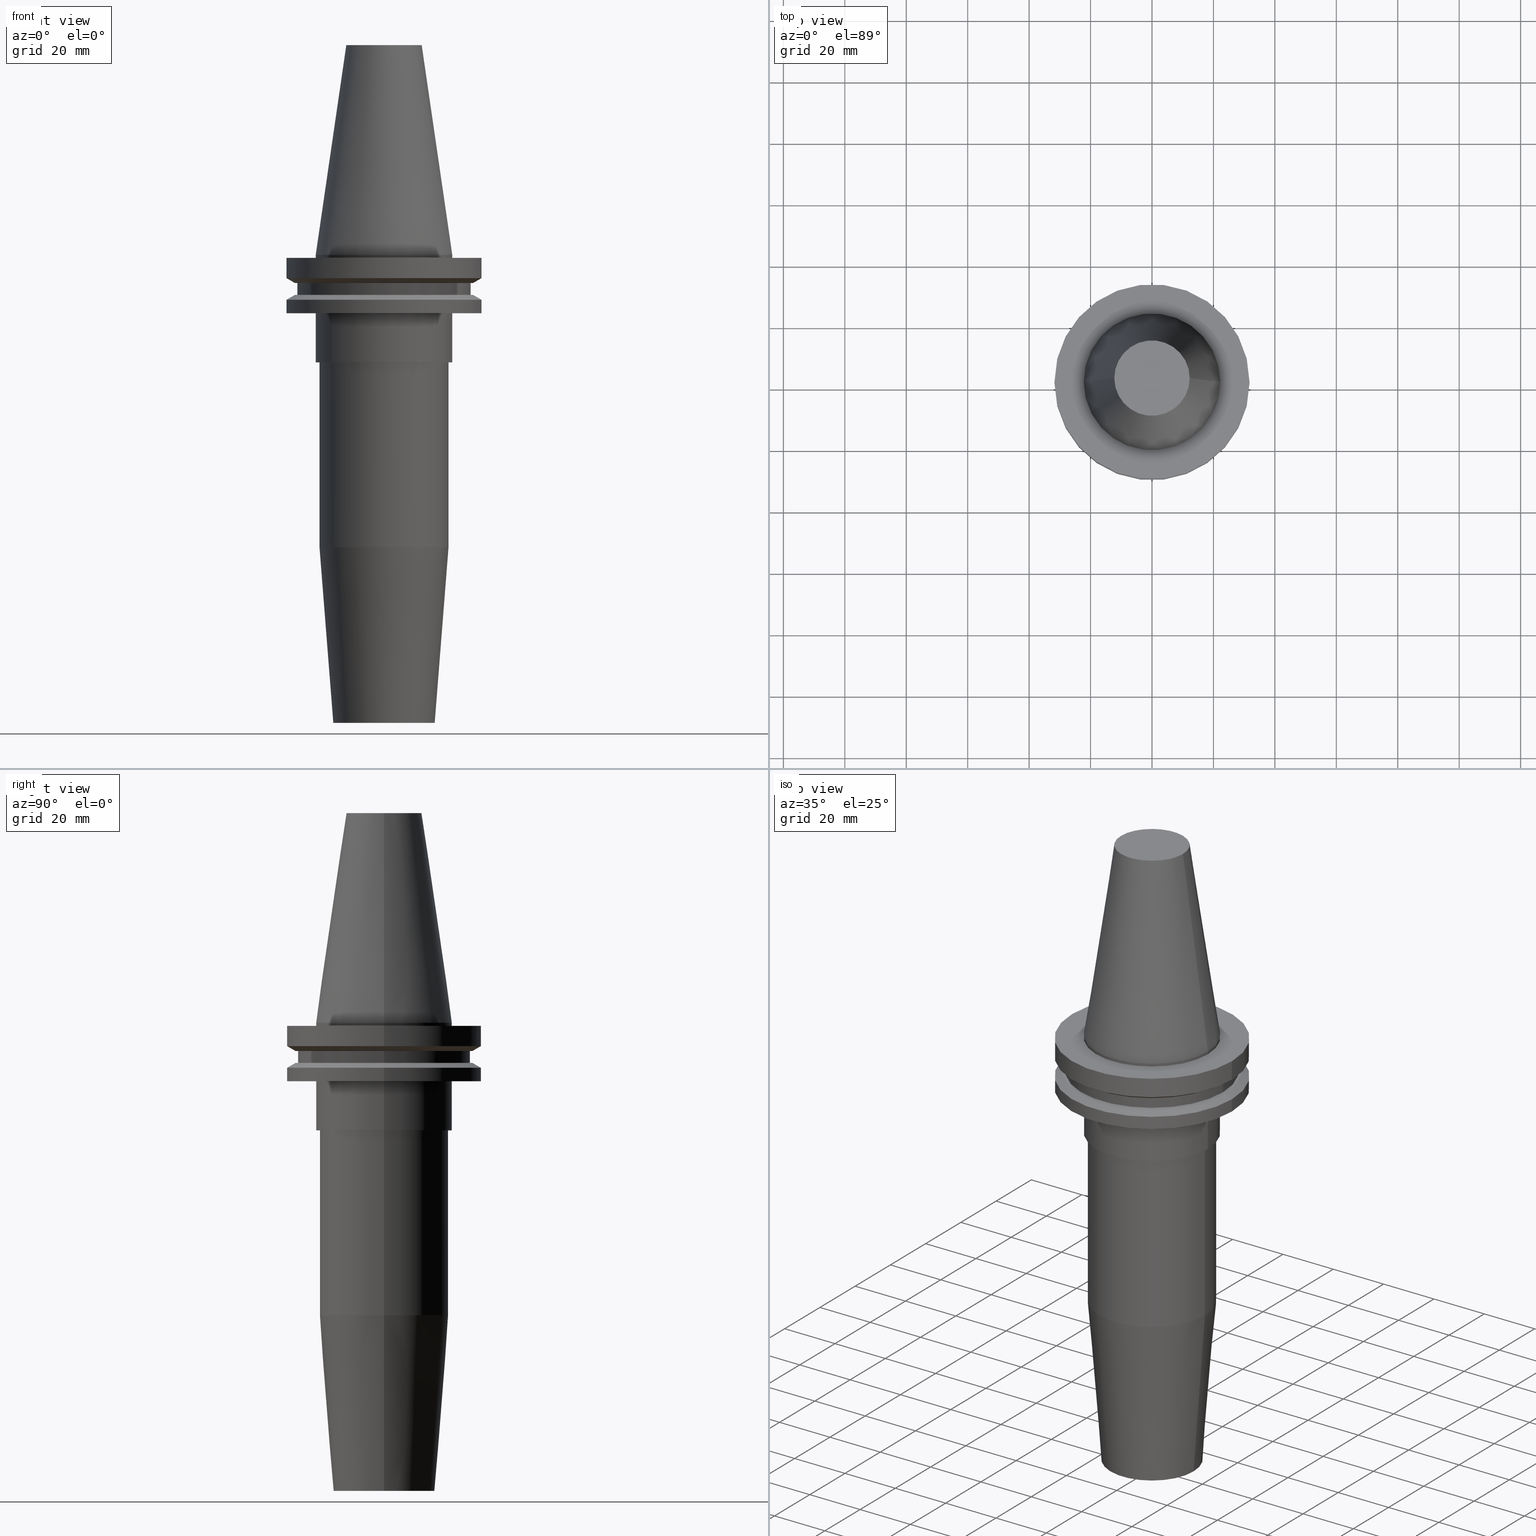
[diagram: canonical four-view strip — front | top / right | iso, engineering-drawing reading convention]
A machine part, canonical four-view strip (front | top / right | iso — engineering-drawing reading convention). The complete STEP part file that produces these views, byte-faithful:
ISO-10303-21;
HEADER;
FILE_DESCRIPTION (( 'STEP AP203' ),
    '1' );
FILE_NAME ('BCV40-SF_750-6.STEP',
    '2022-02-23T17:24:21',
    ( '' ),
    ( '' ),
    'SwSTEP 2.0',
    'SolidWorks 2021',
    '' );
FILE_SCHEMA (( 'CONFIG_CONTROL_DESIGN' ));
ENDSEC;

DATA;
#1 = DIRECTION ( 'NONE',  ( -0.000000000000000000, -0.000000000000000000, 1.000000000000000000 ) ) ;
#2 = VECTOR ( 'NONE', #768, 1000.000000000000000 ) ;
#3 = EDGE_LOOP ( 'NONE', ( #833, #23 ) ) ;
#4 = APPROVAL_DATE_TIME ( #205, #712 ) ;
#5 = AXIS2_PLACEMENT_3D ( 'NONE', #206, #146, #484 ) ;
#6 = CYLINDRICAL_SURFACE ( 'NONE', #172, 28.17999999999999972 ) ;
#7 = ORIENTED_EDGE ( 'NONE', *, *, #36, .T. ) ;
#8 = APPROVAL_STATUS ( 'not_yet_approved' ) ;
#9 = DIRECTION ( 'NONE',  ( 0.000000000000000000, -0.000000000000000000, 1.000000000000000000 ) ) ;
#10 = PERSON_AND_ORGANIZATION ( #515, #90 ) ;
#11 = EDGE_CURVE ( 'NONE', #668, #736, #331, .T. ) ;
#12 = DIRECTION ( 'NONE',  ( -0.000000000000000000, -0.000000000000000000, 1.000000000000000000 ) ) ;
#13 = CARTESIAN_POINT ( 'NONE',  ( 0.000000000000000000, 0.000000000000000000, 68.25000000000000000 ) ) ;
#14 = EDGE_LOOP ( 'NONE', ( #426, #348, #553, #271 ) ) ;
#15 = EDGE_CURVE ( 'NONE', #175, #501, #125, .T. ) ;
#16 = AXIS2_PLACEMENT_3D ( 'NONE', #602, #278, #738 ) ;
#17 = DATE_TIME_ROLE ( 'creation_date' ) ;
#18 = CARTESIAN_POINT ( 'NONE',  ( -12.27178102086201150, 0.000000000000000000, 68.25000000000000000 ) ) ;
#19 = AXIS2_PLACEMENT_3D ( 'NONE', #848, #597, #780 ) ;
#20 = CONICAL_SURFACE ( 'NONE', #404, 16.50000000000000000, 0.07853981633973657062 ) ;
#21 = CIRCLE ( 'NONE', #433, 22.22500000000000142 ) ;
#22 = DIRECTION ( 'NONE',  ( 1.000000000000000000, 0.000000000000000000, 0.000000000000000000 ) ) ;
#23 = ORIENTED_EDGE ( 'NONE', *, *, #119, .T. ) ;
#24 = VERTEX_POINT ( 'NONE', #554 ) ;
#25 = CARTESIAN_POINT ( 'NONE',  ( 0.000000000000000000, 0.000000000000000000, -95.22207868720779800 ) ) ;
#26 = CARTESIAN_POINT ( 'NONE',  ( 0.000000000000000000, 0.000000000000000000, -14.65472339340266572 ) ) ;
#27 = CARTESIAN_POINT ( 'NONE',  ( 0.000000000000000000, 0.000000000000000000, 68.25000000000000000 ) ) ;
#28 = EDGE_LOOP ( 'NONE', ( #70, #437, #310, #230 ) ) ;
#29 = FACE_OUTER_BOUND ( 'NONE', #610, .T. ) ;
#30 = ADVANCED_FACE ( 'NONE', ( #209 ), #818, .T. ) ;
#31 = ORIENTED_EDGE ( 'NONE', *, *, #464, .F. ) ;
#32 = CARTESIAN_POINT ( 'NONE',  ( 0.000000000000000000, 28.97919780457007732, -9.204999999999996518 ) ) ;
#33 = FACE_OUTER_BOUND ( 'NONE', #824, .T. ) ;
#34 = ORIENTED_EDGE ( 'NONE', *, *, #390, .T. ) ;
#35 = CARTESIAN_POINT ( 'NONE',  ( 0.000000000000000000, 0.000000000000000000, -19.04999999999999716 ) ) ;
#36 = EDGE_CURVE ( 'NONE', #574, #24, #380, .T. ) ;
#37 = FACE_OUTER_BOUND ( 'NONE', #360, .T. ) ;
#38 = CIRCLE ( 'NONE', #134, 31.75000000000000000 ) ;
#39 = CC_DESIGN_DATE_AND_TIME_ASSIGNMENT ( #560, #418, ( #669 ) ) ;
#40 = CIRCLE ( 'NONE', #379, 31.75000000000000000 ) ;
#41 = ORIENTED_EDGE ( 'NONE', *, *, #470, .F. ) ;
#42 = LINE ( 'NONE', #308, #391 ) ;
#43 = DIRECTION ( 'NONE',  ( 0.000000000000000000, 0.000000000000000000, -1.000000000000000000 ) ) ;
#44 = ORIENTED_EDGE ( 'NONE', *, *, #464, .T. ) ;
#45 = FACE_OUTER_BOUND ( 'NONE', #158, .T. ) ;
#46 = CARTESIAN_POINT ( 'NONE',  ( 0.000000000000000000, 22.22499999999999787, -35.04999999999999716 ) ) ;
#47 = EDGE_LOOP ( 'NONE', ( #131, #453 ) ) ;
#48 = DIRECTION ( 'NONE',  ( -0.000000000000000000, -0.000000000000000000, 1.000000000000000000 ) ) ;
#49 = DIRECTION ( 'NONE',  ( 0.000000000000000000, 0.000000000000000000, -1.000000000000000000 ) ) ;
#50 = AXIS2_PLACEMENT_3D ( 'NONE', #32, #231, #510 ) ;
#51 = DIRECTION ( 'NONE',  ( 1.000000000000000000, 0.000000000000000000, 0.000000000000000000 ) ) ;
#52 = AXIS2_PLACEMENT_3D ( 'NONE', #535, #466, #475 ) ;
#53 = CONICAL_SURFACE ( 'NONE', #503, 28.97919780457007732, 1.047197551196598297 ) ;
#54 = DIRECTION ( 'NONE',  ( -0.07845909572783671404, 9.608468044709101226E-18, 0.9969173337331286300 ) ) ;
#55 = COORDINATED_UNIVERSAL_TIME_OFFSET ( 6, 0, .BEHIND. ) ;
#56 = EDGE_CURVE ( 'NONE', #799, #482, #198, .T. ) ;
#57 = DIRECTION ( 'NONE',  ( 1.000000000000000000, 0.000000000000000000, 0.000000000000000000 ) ) ;
#58 = CC_DESIGN_APPROVAL ( #712, ( #777 ) ) ;
#59 = CARTESIAN_POINT ( 'NONE',  ( 0.000000000000000000, 0.000000000000000000, -19.04999999999999716 ) ) ;
#60 = CYLINDRICAL_SURFACE ( 'NONE', #559, 21.00000000000000000 ) ;
#61 = AXIS2_PLACEMENT_3D ( 'NONE', #399, #325, #408 ) ;
#62 = AXIS2_PLACEMENT_3D ( 'NONE', #547, #505, #763 ) ;
#63 = PERSON_AND_ORGANIZATION ( #515, #90 ) ;
#64 = CARTESIAN_POINT ( 'NONE',  ( 12.27178102086201150, 2.112318622904291439E-15, 68.25000000000000000 ) ) ;
#65 = EDGE_CURVE ( 'NONE', #24, #261, #623, .T. ) ;
#66 = PLANE ( 'NONE',  #16 ) ;
#67 = DIRECTION ( 'NONE',  ( -0.000000000000000000, -0.000000000000000000, 1.000000000000000000 ) ) ;
#68 = DIRECTION ( 'NONE',  ( -0.000000000000000000, -0.000000000000000000, 1.000000000000000000 ) ) ;
#69 = CARTESIAN_POINT ( 'NONE',  ( 0.000000000000000000, 0.000000000000000000, -35.04999999999999716 ) ) ;
#70 = ORIENTED_EDGE ( 'NONE', *, *, #456, .F. ) ;
#71 = PERSON_AND_ORGANIZATION_ROLE ( 'classification_officer' ) ;
#72 = CIRCLE ( 'NONE', #113, 22.22500000000000142 ) ;
#73 = CARTESIAN_POINT ( 'NONE',  ( 21.00000000000000000, 0.000000000000000000, 0.000000000000000000 ) ) ;
#74 = DIRECTION ( 'NONE',  ( 0.1443082272672999711, 1.767266086135276757E-17, -0.9895327864921755756 ) ) ;
#75 = EDGE_CURVE ( 'NONE', #368, #723, #21, .T. ) ;
#76 = CALENDAR_DATE ( 2022, 23, 2 ) ;
#77 = FACE_OUTER_BOUND ( 'NONE', #293, .T. ) ;
#78 = CARTESIAN_POINT ( 'NONE',  ( 0.000000000000000000, 0.000000000000000000, -13.05499999999999794 ) ) ;
#79 = DIRECTION ( 'NONE',  ( -0.000000000000000000, -0.000000000000000000, 1.000000000000000000 ) ) ;
#80 = DIRECTION ( 'NONE',  ( -0.000000000000000000, -0.000000000000000000, 1.000000000000000000 ) ) ;
#81 = ORIENTED_EDGE ( 'NONE', *, *, #221, .T. ) ;
#82 = CIRCLE ( 'NONE', #188, 28.17999999999999972 ) ;
#83 = AXIS2_PLACEMENT_3D ( 'NONE', #485, #778, #654 ) ;
#84 = DIRECTION ( 'NONE',  ( 1.000000000000000000, 0.000000000000000000, 0.000000000000000000 ) ) ;
#85 = DIRECTION ( 'NONE',  ( 1.000000000000000000, 0.000000000000000000, 0.000000000000000000 ) ) ;
#86 = VERTEX_POINT ( 'NONE', #87 ) ;
#87 = CARTESIAN_POINT ( 'NONE',  ( -21.00000000000000000, 2.571758278209441661E-15, -95.22207868720779800 ) ) ;
#88 = FACE_OUTER_BOUND ( 'NONE', #28, .T. ) ;
#89 = EDGE_LOOP ( 'NONE', ( #179, #375 ) ) ;
#90 = ORGANIZATION ( 'UNSPECIFIED', 'UNSPECIFIED', '' ) ;
#91 = DIRECTION ( 'NONE',  ( -1.000000000000000000, 0.000000000000000000, 0.000000000000000000 ) ) ;
#92 = ADVANCED_FACE ( 'NONE', ( #364 ), #53, .T. ) ;
#93 = ORIENTED_EDGE ( 'NONE', *, *, #456, .T. ) ;
#94 = DIRECTION ( 'NONE',  ( 1.000000000000000000, 0.000000000000000000, 0.000000000000000000 ) ) ;
#95 = ORIENTED_EDGE ( 'NONE', *, *, #612, .T. ) ;
#96 = DIRECTION ( 'NONE',  ( -0.000000000000000000, -0.000000000000000000, 1.000000000000000000 ) ) ;
#97 = FACE_OUTER_BOUND ( 'NONE', #671, .T. ) ;
#98 = ORIENTED_EDGE ( 'NONE', *, *, #306, .F. ) ;
#99 = CARTESIAN_POINT ( 'NONE',  ( 0.000000000000000000, 0.000000000000000000, 0.000000000000000000 ) ) ;
#100 = AXIS2_PLACEMENT_3D ( 'NONE', #715, #48, #507 ) ;
#101 = AXIS2_PLACEMENT_3D ( 'NONE', #59, #783, #839 ) ;
#102 = EDGE_CURVE ( 'NONE', #617, #297, #284, .T. ) ;
#103 = EDGE_LOOP ( 'NONE', ( #519, #797, #272, #155 ) ) ;
#104 = FACE_OUTER_BOUND ( 'NONE', #469, .T. ) ;
#105 = EDGE_LOOP ( 'NONE', ( #44, #359 ) ) ;
#106 = DIRECTION ( 'NONE',  ( -0.000000000000000000, -0.000000000000000000, 1.000000000000000000 ) ) ;
#107 = EDGE_CURVE ( 'NONE', #540, #281, #545, .T. ) ;
#108 = DIRECTION ( 'NONE',  ( 1.000000000000000000, 0.000000000000000000, 0.000000000000000000 ) ) ;
#109 = CARTESIAN_POINT ( 'NONE',  ( 0.000000000000000000, 0.000000000000000000, -1.000000000000000888 ) ) ;
#110 = CIRCLE ( 'NONE', #605, 9.525000000000007461 ) ;
#111 = EDGE_CURVE ( 'NONE', #281, #540, #173, .T. ) ;
#112 = CARTESIAN_POINT ( 'NONE',  ( -9.525000000000003908, 1.166476076187854416E-15, 0.000000000000000000 ) ) ;
#113 = AXIS2_PLACEMENT_3D ( 'NONE', #99, #711, #823 ) ;
#114 = LINE ( 'NONE', #787, #679 ) ;
#115 = ORIENTED_EDGE ( 'NONE', *, *, #382, .T. ) ;
#116 = DIRECTION ( 'NONE',  ( -0.000000000000000000, -0.000000000000000000, 1.000000000000000000 ) ) ;
#117 = FACE_OUTER_BOUND ( 'NONE', #385, .T. ) ;
#118 = DIRECTION ( 'NONE',  ( 1.000000000000000000, 0.000000000000000000, 0.000000000000000000 ) ) ;
#119 = EDGE_CURVE ( 'NONE', #506, #645, #468, .T. ) ;
#120 = VERTEX_POINT ( 'NONE', #696 ) ;
#121 = PERSON_AND_ORGANIZATION ( #515, #90 ) ;
#122 = CARTESIAN_POINT ( 'NONE',  ( 28.17999999999999972, 0.000000000000000000, 68.25000000000000000 ) ) ;
#123 = VECTOR ( 'NONE', #1, 1000.000000000000000 ) ;
#124 = AXIS2_PLACEMENT_3D ( 'NONE', #388, #301, #697 ) ;
#125 = CIRCLE ( 'NONE', #83, 16.50000000000000000 ) ;
#126 = CALENDAR_DATE ( 2022, 23, 2 ) ;
#127 = DIRECTION ( 'NONE',  ( -0.000000000000000000, -0.000000000000000000, 1.000000000000000000 ) ) ;
#128 = EDGE_CURVE ( 'NONE', #86, #585, #454, .T. ) ;
#129 = CALENDAR_DATE ( 2022, 23, 2 ) ;
#130 = FACE_OUTER_BOUND ( 'NONE', #14, .T. ) ;
#131 = ORIENTED_EDGE ( 'NONE', *, *, #816, .F. ) ;
#132 = PRODUCT_RELATED_PRODUCT_CATEGORY ( 'detail', '', ( #845 ) ) ;
#133 = LINE ( 'NONE', #682, #329 ) ;
#134 = AXIS2_PLACEMENT_3D ( 'NONE', #195, #127, #603 ) ;
#135 = COORDINATED_UNIVERSAL_TIME_OFFSET ( 6, 0, .BEHIND. ) ;
#136 = EDGE_CURVE ( 'NONE', #736, #368, #291, .T. ) ;
#137 = CIRCLE ( 'NONE', #330, 31.75000000000000000 ) ;
#138 = CARTESIAN_POINT ( 'NONE',  ( 0.000000000000000000, 0.000000000000000000, 0.000000000000000000 ) ) ;
#139 = ORIENTED_EDGE ( 'NONE', *, *, #785, .F. ) ;
#140 = DIRECTION ( 'NONE',  ( -0.000000000000000000, -0.000000000000000000, 1.000000000000000000 ) ) ;
#141 = ORIENTED_EDGE ( 'NONE', *, *, #843, .F. ) ;
#142 = ORIENTED_EDGE ( 'NONE', *, *, #843, .T. ) ;
#143 = DIRECTION ( 'NONE',  ( -0.000000000000000000, -0.000000000000000000, 1.000000000000000000 ) ) ;
#144 = PRODUCT_DEFINITION ( 'UNKNOWN', '', #777, #504 ) ;
#145 = ORIENTED_EDGE ( 'NONE', *, *, #366, .F. ) ;
#146 = DIRECTION ( 'NONE',  ( -0.000000000000000000, -0.000000000000000000, 1.000000000000000000 ) ) ;
#147 = CARTESIAN_POINT ( 'NONE',  ( 0.000000000000000000, 0.000000000000000000, 0.000000000000000000 ) ) ;
#148 = CIRCLE ( 'NONE', #651, 31.75000000000000000 ) ;
#149 = EDGE_LOOP ( 'NONE', ( #627, #383 ) ) ;
#150 = CARTESIAN_POINT ( 'NONE',  ( 0.000000000000000000, 0.000000000000000000, -105.4000000000000057 ) ) ;
#151 = VERTEX_POINT ( 'NONE', #583 ) ;
#152 = CIRCLE ( 'NONE', #689, 9.525000000000000355 ) ;
#153 = DIRECTION ( 'NONE',  ( 1.000000000000000000, 0.000000000000000000, 0.000000000000000000 ) ) ;
#154 = VECTOR ( 'NONE', #513, 1000.000000000000000 ) ;
#155 = ORIENTED_EDGE ( 'NONE', *, *, #136, .F. ) ;
#156 = FACE_OUTER_BOUND ( 'NONE', #149, .T. ) ;
#157 = CARTESIAN_POINT ( 'NONE',  ( -31.74999999999999289, 3.888253587292845687E-15, -19.04999999999999716 ) ) ;
#158 = EDGE_LOOP ( 'NONE', ( #457, #208, #409, #639 ) ) ;
#159 = DIRECTION ( 'NONE',  ( 1.000000000000000000, 0.000000000000000000, 0.000000000000000000 ) ) ;
#160 = VERTEX_POINT ( 'NONE', #224 ) ;
#161 = CARTESIAN_POINT ( 'NONE',  ( 16.50000000000000000, 0.000000000000000000, -152.4000000000000057 ) ) ;
#162 = CC_DESIGN_SECURITY_CLASSIFICATION ( #669, ( #777 ) ) ;
#163 = PLANE ( 'NONE',  #479 ) ;
#164 = ORIENTED_EDGE ( 'NONE', *, *, #107, .T. ) ;
#165 = DIRECTION ( 'NONE',  ( -0.000000000000000000, -0.000000000000000000, 1.000000000000000000 ) ) ;
#166 = CARTESIAN_POINT ( 'NONE',  ( 0.000000000000000000, 0.000000000000000000, -9.205000000000005400 ) ) ;
#167 = ORIENTED_EDGE ( 'NONE', *, *, #258, .T. ) ;
#168 = ADVANCED_FACE ( 'NONE', ( #156, #438 ), #830, .F. ) ;
#169 = PLANE ( 'NONE',  #732 ) ;
#170 = ORIENTED_EDGE ( 'NONE', *, *, #354, .F. ) ;
#171 = DIRECTION ( 'NONE',  ( -0.000000000000000000, -0.000000000000000000, 1.000000000000000000 ) ) ;
#172 = AXIS2_PLACEMENT_3D ( 'NONE', #13, #140, #619 ) ;
#173 = CIRCLE ( 'NONE', #751, 28.97919780457008088 ) ;
#174 = LINE ( 'NONE', #625, #400 ) ;
#175 = VERTEX_POINT ( 'NONE', #161 ) ;
#176 = CARTESIAN_POINT ( 'NONE',  ( 31.75000000000000000, 0.000000000000000000, -14.65472339340266572 ) ) ;
#177 = DIRECTION ( 'NONE',  ( -0.000000000000000000, -0.000000000000000000, 1.000000000000000000 ) ) ;
#178 = EDGE_CURVE ( 'NONE', #297, #151, #42, .T. ) ;
#179 = ORIENTED_EDGE ( 'NONE', *, *, #269, .T. ) ;
#180 = CARTESIAN_POINT ( 'NONE',  ( 0.000000000000000000, 31.75000000000000000, -0.9999999999999995559 ) ) ;
#181 = APPROVAL_PERSON_ORGANIZATION ( #342, #712, #283 ) ;
#182 = FACE_OUTER_BOUND ( 'NONE', #189, .T. ) ;
#183 = EDGE_CURVE ( 'NONE', #120, #245, #521, .T. ) ;
#184 = EDGE_CURVE ( 'NONE', #160, #482, #174, .T. ) ;
#185 = CYLINDRICAL_SURFACE ( 'NONE', #276, 22.22500000000000142 ) ;
#186 = CIRCLE ( 'NONE', #686, 16.50000000000000000 ) ;
#187 = DIRECTION ( 'NONE',  ( 0.07845909572783671404, 0.000000000000000000, 0.9969173337331286300 ) ) ;
#188 = AXIS2_PLACEMENT_3D ( 'NONE', #374, #365, #761 ) ;
#189 = EDGE_LOOP ( 'NONE', ( #428, #435, #754, #170 ) ) ;
#190 = DIRECTION ( 'NONE',  ( 1.000000000000000000, 0.000000000000000000, 0.000000000000000000 ) ) ;
#191 = CARTESIAN_POINT ( 'NONE',  ( 21.00000000000000000, 0.000000000000000000, -35.04999999999999716 ) ) ;
#192 = PERSON_AND_ORGANIZATION ( #515, #90 ) ;
#193 = DIRECTION ( 'NONE',  ( -0.000000000000000000, -0.000000000000000000, 1.000000000000000000 ) ) ;
#194 = EDGE_CURVE ( 'NONE', #809, #698, #148, .T. ) ;
#195 = CARTESIAN_POINT ( 'NONE',  ( 0.000000000000000000, 0.000000000000000000, -7.605276606597335842 ) ) ;
#196 = VECTOR ( 'NONE', #722, 1000.000000000000000 ) ;
#197 = EDGE_LOOP ( 'NONE', ( #493, #207, #643, #347 ) ) ;
#198 = CIRCLE ( 'NONE', #838, 31.75000000000000000 ) ;
#199 = FACE_OUTER_BOUND ( 'NONE', #710, .T. ) ;
#200 = ORIENTED_EDGE ( 'NONE', *, *, #183, .F. ) ;
#201 = DATE_AND_TIME ( #126, #565 ) ;
#202 = EDGE_CURVE ( 'NONE', #831, #120, #110, .T. ) ;
#203 = PLANE ( 'NONE',  #394 ) ;
#204 = ADVANCED_FACE ( 'NONE', ( #117 ), #66, .F. ) ;
#205 = DATE_AND_TIME ( #211, #367 ) ;
#206 = CARTESIAN_POINT ( 'NONE',  ( 0.000000000000000000, 0.000000000000000000, -9.205000000000005400 ) ) ;
#207 = ORIENTED_EDGE ( 'NONE', *, *, #128, .T. ) ;
#208 = ORIENTED_EDGE ( 'NONE', *, *, #509, .F. ) ;
#209 = FACE_OUTER_BOUND ( 'NONE', #701, .T. ) ;
#210 = VECTOR ( 'NONE', #551, 1000.000000000000000 ) ;
#211 = CALENDAR_DATE ( 2022, 23, 2 ) ;
#212 = AXIS2_PLACEMENT_3D ( 'NONE', #813, #225, #702 ) ;
#213 = DIRECTION ( 'NONE',  ( -0.000000000000000000, -0.000000000000000000, 1.000000000000000000 ) ) ;
#214 = EDGE_LOOP ( 'NONE', ( #840, #423, #141, #315 ) ) ;
#215 = PERSON_AND_ORGANIZATION ( #515, #90 ) ;
#216 = DIRECTION ( 'NONE',  ( -0.000000000000000000, -0.000000000000000000, 1.000000000000000000 ) ) ;
#217 = CARTESIAN_POINT ( 'NONE',  ( 0.000000000000000000, 0.000000000000000000, -35.04999999999999716 ) ) ;
#218 = ORIENTED_EDGE ( 'NONE', *, *, #128, .F. ) ;
#219 = CARTESIAN_POINT ( 'NONE',  ( 0.000000000000000000, 0.000000000000000000, 68.25000000000000000 ) ) ;
#220 = VERTEX_POINT ( 'NONE', #650 ) ;
#221 = EDGE_CURVE ( 'NONE', #698, #809, #353, .T. ) ;
#222 = AXIS2_PLACEMENT_3D ( 'NONE', #644, #815, #249 ) ;
#223 = ORIENTED_EDGE ( 'NONE', *, *, #595, .F. ) ;
#224 = CARTESIAN_POINT ( 'NONE',  ( 31.75000000000000000, 0.000000000000000000, -7.605276606597335842 ) ) ;
#225 = DIRECTION ( 'NONE',  ( 0.000000000000000000, 0.000000000000000000, -1.000000000000000000 ) ) ;
#226 = VERTEX_POINT ( 'NONE', #455 ) ;
#227 = AXIS2_PLACEMENT_3D ( 'NONE', #636, #106, #241 ) ;
#228 = DIRECTION ( 'NONE',  ( -0.000000000000000000, -0.000000000000000000, 1.000000000000000000 ) ) ;
#229 = CARTESIAN_POINT ( 'NONE',  ( 28.97919780457008088, 3.718590885307660666E-15, -13.05499999999999794 ) ) ;
#230 = ORIENTED_EDGE ( 'NONE', *, *, #194, .F. ) ;
#231 = DIRECTION ( 'NONE',  ( 0.000000000000000000, -0.000000000000000000, 1.000000000000000000 ) ) ;
#232 = CARTESIAN_POINT ( 'NONE',  ( -22.22500000000000142, 2.721777511104992849E-15, -19.04999999999999716 ) ) ;
#233 = ORIENTED_EDGE ( 'NONE', *, *, #497, .F. ) ;
#234 = DIRECTION ( 'NONE',  ( 1.000000000000000000, 0.000000000000000000, 0.000000000000000000 ) ) ;
#235 = APPLICATION_CONTEXT ( 'configuration controlled 3d designs of mechanical parts and assemblies' ) ;
#236 = MANIFOLD_SOLID_BREP ( 'SF', #405 ) ;
#237 = ADVANCED_FACE ( 'NONE', ( #37 ), #339, .T. ) ;
#238 = ORIENTED_EDGE ( 'NONE', *, *, #421, .F. ) ;
#239 = CARTESIAN_POINT ( 'NONE',  ( -31.75000000000000000, 0.000000000000000000, -14.65472339340266572 ) ) ;
#240 = ORIENTED_EDGE ( 'NONE', *, *, #785, .T. ) ;
#241 = DIRECTION ( 'NONE',  ( 1.000000000000000000, 0.000000000000000000, 0.000000000000000000 ) ) ;
#242 = VECTOR ( 'NONE', #96, 1000.000000000000000 ) ;
#243 = DIRECTION ( 'NONE',  ( -0.8660254037844389297, 1.060575238724907285E-16, 0.4999999999999995004 ) ) ;
#244 = CARTESIAN_POINT ( 'NONE',  ( 0.000000000000000000, 0.000000000000000000, -152.4000000000000057 ) ) ;
#245 = VERTEX_POINT ( 'NONE', #448 ) ;
#246 = LINE ( 'NONE', #631, #403 ) ;
#247 = CIRCLE ( 'NONE', #5, 28.97919780457007732 ) ;
#248 = ADVANCED_FACE ( 'NONE', ( #88 ), #296, .T. ) ;
#249 = DIRECTION ( 'NONE',  ( 1.000000000000000000, 0.000000000000000000, 0.000000000000000000 ) ) ;
#250 = CARTESIAN_POINT ( 'NONE',  ( 0.000000000000000000, 0.000000000000000000, 0.000000000000000000 ) ) ;
#251 = APPLICATION_CONTEXT ( 'configuration controlled 3d designs of mechanical parts and assemblies' ) ;
#252 = CC_DESIGN_PERSON_AND_ORGANIZATION_ASSIGNMENT ( #345, #676, ( #777 ) ) ;
#253 = CARTESIAN_POINT ( 'NONE',  ( 0.000000000000000000, 0.000000000000000000, -152.4000000000000057 ) ) ;
#254 = FACE_OUTER_BOUND ( 'NONE', #197, .T. ) ;
#255 = AXIS2_PLACEMENT_3D ( 'NONE', #557, #678, #274 ) ;
#256 = AXIS2_PLACEMENT_3D ( 'NONE', #253, #533, #591 ) ;
#257 = FACE_OUTER_BOUND ( 'NONE', #568, .T. ) ;
#258 = EDGE_CURVE ( 'NONE', #501, #175, #186, .T. ) ;
#259 = CIRCLE ( 'NONE', #850, 21.00000000000000000 ) ;
#260 = DIRECTION ( 'NONE',  ( 1.000000000000000000, 0.000000000000000000, 0.000000000000000000 ) ) ;
#261 = VERTEX_POINT ( 'NONE', #590 ) ;
#262 = AXIS2_PLACEMENT_3D ( 'NONE', #25, #312, #633 ) ;
#263 = DIRECTION ( 'NONE',  ( 1.000000000000000000, 0.000000000000000000, 0.000000000000000000 ) ) ;
#264 = ADVANCED_FACE ( 'NONE', ( #45 ), #758, .T. ) ;
#265 = CIRCLE ( 'NONE', #255, 28.17999999999999972 ) ;
#266 = ORIENTED_EDGE ( 'NONE', *, *, #269, .F. ) ;
#267 = AXIS2_PLACEMENT_3D ( 'NONE', #78, #822, #352 ) ;
#268 = DATE_AND_TIME ( #76, #486 ) ;
#269 = EDGE_CURVE ( 'NONE', #524, #340, #259, .T. ) ;
#270 = DIRECTION ( 'NONE',  ( 1.000000000000000000, 0.000000000000000000, 0.000000000000000000 ) ) ;
#271 = ORIENTED_EDGE ( 'NONE', *, *, #542, .F. ) ;
#272 = ORIENTED_EDGE ( 'NONE', *, *, #75, .F. ) ;
#273 = COORDINATED_UNIVERSAL_TIME_OFFSET ( 6, 0, .BEHIND. ) ;
#274 = DIRECTION ( 'NONE',  ( 1.000000000000000000, 0.000000000000000000, 0.000000000000000000 ) ) ;
#275 = ORIENTED_EDGE ( 'NONE', *, *, #350, .T. ) ;
#276 = AXIS2_PLACEMENT_3D ( 'NONE', #471, #116, #588 ) ;
#277 = ADVANCED_FACE ( 'NONE', ( #582 ), #694, .T. ) ;
#278 = DIRECTION ( 'NONE',  ( 0.000000000000000000, -0.000000000000000000, 1.000000000000000000 ) ) ;
#279 = APPROVAL_DATE_TIME ( #268, #445 ) ;
#280 = FACE_OUTER_BOUND ( 'NONE', #587, .T. ) ;
#281 = VERTEX_POINT ( 'NONE', #229 ) ;
#282 = CIRCLE ( 'NONE', #534, 22.22500000000000142 ) ;
#283 = APPROVAL_ROLE ( '' ) ;
#284 = CIRCLE ( 'NONE', #480, 28.97919780457007732 ) ;
#285 = FACE_BOUND ( 'NONE', #105, .T. ) ;
#286 = EDGE_CURVE ( 'NONE', #220, #757, #82, .T. ) ;
#287 = ORIENTED_EDGE ( 'NONE', *, *, #15, .T. ) ;
#288 = CARTESIAN_POINT ( 'NONE',  ( 0.000000000000000000, 0.000000000000000000, -7.605276606597335842 ) ) ;
#289 = ORIENTED_EDGE ( 'NONE', *, *, #621, .F. ) ;
#290 = ORIENTED_EDGE ( 'NONE', *, *, #15, .F. ) ;
#291 = LINE ( 'NONE', #641, #242 ) ;
#292 = FACE_OUTER_BOUND ( 'NONE', #3, .T. ) ;
#293 = EDGE_LOOP ( 'NONE', ( #632, #95, #266, #727 ) ) ;
#294 = CARTESIAN_POINT ( 'NONE',  ( 0.000000000000000000, 0.000000000000000000, -9.205000000000005400 ) ) ;
#295 = EDGE_CURVE ( 'NONE', #261, #24, #72, .T. ) ;
#296 = CYLINDRICAL_SURFACE ( 'NONE', #675, 31.75000000000000000 ) ;
#297 = VERTEX_POINT ( 'NONE', #514 ) ;
#298 = CARTESIAN_POINT ( 'NONE',  ( 0.000000000000000000, 0.000000000000000000, -13.05499999999999794 ) ) ;
#299 = DIRECTION ( 'NONE',  ( 1.000000000000000000, 0.000000000000000000, 0.000000000000000000 ) ) ;
#300 = CIRCLE ( 'NONE', #836, 22.22500000000000142 ) ;
#301 = DIRECTION ( 'NONE',  ( 0.000000000000000000, -0.000000000000000000, 1.000000000000000000 ) ) ;
#302 = ORIENTED_EDGE ( 'NONE', *, *, #36, .F. ) ;
#303 = EDGE_CURVE ( 'NONE', #585, #86, #478, .T. ) ;
#304 = DIRECTION ( 'NONE',  ( -0.000000000000000000, -0.000000000000000000, 1.000000000000000000 ) ) ;
#305 = CARTESIAN_POINT ( 'NONE',  ( 0.000000000000000000, 0.000000000000000000, 68.25000000000000000 ) ) ;
#306 = EDGE_CURVE ( 'NONE', #226, #574, #282, .T. ) ;
#307 = ORIENTED_EDGE ( 'NONE', *, *, #664, .F. ) ;
#308 = CARTESIAN_POINT ( 'NONE',  ( -28.97919780457007732, 3.548928183322474856E-15, -9.205000000000005400 ) ) ;
#309 = FACE_OUTER_BOUND ( 'NONE', #488, .T. ) ;
#310 = ORIENTED_EDGE ( 'NONE', *, *, #410, .T. ) ;
#311 = DIRECTION ( 'NONE',  ( -0.000000000000000000, -0.000000000000000000, 1.000000000000000000 ) ) ;
#312 = DIRECTION ( 'NONE',  ( -0.000000000000000000, -0.000000000000000000, 1.000000000000000000 ) ) ;
#313 = ORIENTED_EDGE ( 'NONE', *, *, #369, .F. ) ;
#314 = CARTESIAN_POINT ( 'NONE',  ( 0.000000000000000000, 0.000000000000000000, -14.65472339340266572 ) ) ;
#315 = ORIENTED_EDGE ( 'NONE', *, *, #184, .F. ) ;
#316 = DIRECTION ( 'NONE',  ( -0.000000000000000000, -0.000000000000000000, 1.000000000000000000 ) ) ;
#317 = ORIENTED_EDGE ( 'NONE', *, *, #579, .T. ) ;
#318 = CARTESIAN_POINT ( 'NONE',  ( 0.000000000000000000, 0.000000000000000000, 68.25000000000000000 ) ) ;
#319 = DIRECTION ( 'NONE',  ( -0.000000000000000000, -0.000000000000000000, 1.000000000000000000 ) ) ;
#320 = AXIS2_PLACEMENT_3D ( 'NONE', #147, #827, #429 ) ;
#321 = ADVANCED_FACE ( 'NONE', ( #29 ), #389, .F. ) ;
#322 = DIRECTION ( 'NONE',  ( -0.000000000000000000, -0.000000000000000000, 1.000000000000000000 ) ) ;
#323 = DIRECTION ( 'NONE',  ( -0.000000000000000000, -0.000000000000000000, 1.000000000000000000 ) ) ;
#324 = DATE_AND_TIME ( #660, #555 ) ;
#325 = DIRECTION ( 'NONE',  ( -0.000000000000000000, -0.000000000000000000, 1.000000000000000000 ) ) ;
#326 = EDGE_CURVE ( 'NONE', #757, #220, #661, .T. ) ;
#327 = CARTESIAN_POINT ( 'NONE',  ( 0.000000000000000000, 0.000000000000000000, -1.000000000000000888 ) ) ;
#328 = LINE ( 'NONE', #592, #355 ) ;
#329 = VECTOR ( 'NONE', #74, 999.9999999999998863 ) ;
#330 = AXIS2_PLACEMENT_3D ( 'NONE', #327, #322, #190 ) ;
#331 = CIRCLE ( 'NONE', #599, 22.22499999999999787 ) ;
#332 = PERSON_AND_ORGANIZATION_ROLE ( 'creator' ) ;
#333 = CARTESIAN_POINT ( 'NONE',  ( -16.50000000000000000, 2.020667218593133100E-15, -152.4000000000000057 ) ) ;
#334 = CC_DESIGN_PERSON_AND_ORGANIZATION_ASSIGNMENT ( #10, #71, ( #669 ) ) ;
#335 = DIRECTION ( 'NONE',  ( -0.000000000000000000, -0.000000000000000000, 1.000000000000000000 ) ) ;
#336 = ORIENTED_EDGE ( 'NONE', *, *, #111, .T. ) ;
#337 = APPROVAL_STATUS ( 'not_yet_approved' ) ;
#338 = CYLINDRICAL_SURFACE ( 'NONE', #800, 21.00000000000000000 ) ;
#339 = CONICAL_SURFACE ( 'NONE', #812, 28.97919780457007732, 1.047197551196598297 ) ;
#340 = VERTEX_POINT ( 'NONE', #834 ) ;
#341 = AXIS2_PLACEMENT_3D ( 'NONE', #735, #419, #415 ) ;
#342 = PERSON_AND_ORGANIZATION ( #515, #90 ) ;
#343 = DIRECTION ( 'NONE',  ( 1.000000000000000000, 0.000000000000000000, 0.000000000000000000 ) ) ;
#344 = ORIENTED_EDGE ( 'NONE', *, *, #470, .T. ) ;
#345 = PERSON_AND_ORGANIZATION ( #515, #90 ) ;
#346 = CARTESIAN_POINT ( 'NONE',  ( 28.97919780457007732, 0.000000000000000000, -9.205000000000005400 ) ) ;
#347 = ORIENTED_EDGE ( 'NONE', *, *, #529, .F. ) ;
#348 = ORIENTED_EDGE ( 'NONE', *, *, #326, .T. ) ;
#349 = AXIS2_PLACEMENT_3D ( 'NONE', #465, #852, #721 ) ;
#350 = EDGE_CURVE ( 'NONE', #226, #261, #246, .T. ) ;
#351 = CARTESIAN_POINT ( 'NONE',  ( -9.525000000000000355, 1.166476076187854219E-15, -105.4000000000000057 ) ) ;
#352 = DIRECTION ( 'NONE',  ( 1.000000000000000000, 0.000000000000000000, 0.000000000000000000 ) ) ;
#353 = CIRCLE ( 'NONE', #222, 31.75000000000000000 ) ;
#354 = EDGE_CURVE ( 'NONE', #645, #261, #773, .T. ) ;
#355 = VECTOR ( 'NONE', #653, 1000.000000000000000 ) ;
#356 = CARTESIAN_POINT ( 'NONE',  ( 0.000000000000000000, 0.000000000000000000, 68.25000000000000000 ) ) ;
#357 = AXIS2_PLACEMENT_3D ( 'NONE', #770, #434, #832 ) ;
#358 = CYLINDRICAL_SURFACE ( 'NONE', #62, 31.75000000000000000 ) ;
#359 = ORIENTED_EDGE ( 'NONE', *, *, #202, .T. ) ;
#360 = EDGE_LOOP ( 'NONE', ( #628, #492, #307, #289 ) ) ;
#361 = DIRECTION ( 'NONE',  ( 1.000000000000000000, 0.000000000000000000, 0.000000000000000000 ) ) ;
#362 = DIRECTION ( 'NONE',  ( -1.000000000000000000, 0.000000000000000000, -0.000000000000000000 ) ) ;
#363 = ORIENTED_EDGE ( 'NONE', *, *, #202, .F. ) ;
#364 = FACE_OUTER_BOUND ( 'NONE', #771, .T. ) ;
#365 = DIRECTION ( 'NONE',  ( -0.000000000000000000, -0.000000000000000000, 1.000000000000000000 ) ) ;
#366 = EDGE_CURVE ( 'NONE', #245, #571, #152, .T. ) ;
#367 = LOCAL_TIME ( 11, 24, 21.00000000000000000, #273 ) ;
#368 = VERTEX_POINT ( 'NONE', #442 ) ;
#369 = EDGE_CURVE ( 'NONE', #668, #723, #717, .T. ) ;
#370 = ADVANCED_FACE ( 'NONE', ( #257 ), #784, .F. ) ;
#371 = CARTESIAN_POINT ( 'NONE',  ( -31.75000000000000000, 3.888253587292846476E-15, -1.000000000000000888 ) ) ;
#372 = ORIENTED_EDGE ( 'NONE', *, *, #136, .T. ) ;
#373 = CARTESIAN_POINT ( 'NONE',  ( 22.22500000000000142, 0.000000000000000000, 68.25000000000000000 ) ) ;
#374 = CARTESIAN_POINT ( 'NONE',  ( 0.000000000000000000, 0.000000000000000000, -13.05499999999999794 ) ) ;
#375 = ORIENTED_EDGE ( 'NONE', *, *, #529, .T. ) ;
#376 = DIRECTION ( 'NONE',  ( -0.000000000000000000, -0.000000000000000000, 1.000000000000000000 ) ) ;
#377 = DIRECTION ( 'NONE',  ( 1.000000000000000000, 0.000000000000000000, 0.000000000000000000 ) ) ;
#378 = ORIENTED_EDGE ( 'NONE', *, *, #387, .T. ) ;
#379 = AXIS2_PLACEMENT_3D ( 'NONE', #288, #80, #270 ) ;
#380 = LINE ( 'NONE', #373, #154 ) ;
#381 = CARTESIAN_POINT ( 'NONE',  ( 0.000000000000000000, 0.000000000000000000, -35.04999999999999716 ) ) ;
#382 = EDGE_CURVE ( 'NONE', #831, #571, #667, .T. ) ;
#383 = ORIENTED_EDGE ( 'NONE', *, *, #579, .F. ) ;
#384 = DIRECTION ( 'NONE',  ( -0.000000000000000000, -0.000000000000000000, 1.000000000000000000 ) ) ;
#385 = EDGE_LOOP ( 'NONE', ( #145, #139 ) ) ;
#386 = CARTESIAN_POINT ( 'NONE',  ( 0.000000000000000000, 0.000000000000000000, -13.05499999999999794 ) ) ;
#387 = EDGE_CURVE ( 'NONE', #446, #691, #680, .T. ) ;
#388 = CARTESIAN_POINT ( 'NONE',  ( 0.000000000000000000, 31.74999999999999289, -19.04999999999999716 ) ) ;
#389 = CYLINDRICAL_SURFACE ( 'NONE', #227, 9.525000000000003908 ) ;
#390 = EDGE_CURVE ( 'NONE', #175, #585, #114, .T. ) ;
#391 = VECTOR ( 'NONE', #243, 1000.000000000000000 ) ;
#392 = APPLICATION_PROTOCOL_DEFINITION ( 'international standard', 'config_control_design', 1994, #235 ) ;
#393 = CARTESIAN_POINT ( 'NONE',  ( 0.000000000000000000, 0.000000000000000000, 68.25000000000000000 ) ) ;
#394 = AXIS2_PLACEMENT_3D ( 'NONE', #613, #9, #343 ) ;
#395 = APPLICATION_PROTOCOL_DEFINITION ( 'international standard', 'config_control_design', 1994, #251 ) ;
#396 = FACE_OUTER_BOUND ( 'NONE', #688, .T. ) ;
#397 = DIRECTION ( 'NONE',  ( -0.000000000000000000, -0.000000000000000000, 1.000000000000000000 ) ) ;
#398 = CC_DESIGN_APPROVAL ( #414, ( #144 ) ) ;
#399 = CARTESIAN_POINT ( 'NONE',  ( 0.000000000000000000, 0.000000000000000000, 68.25000000000000000 ) ) ;
#400 = VECTOR ( 'NONE', #216, 1000.000000000000000 ) ;
#401 = APPROVAL_ROLE ( '' ) ;
#402 = DIRECTION ( 'NONE',  ( 1.000000000000000000, 0.000000000000000000, 0.000000000000000000 ) ) ;
#403 = VECTOR ( 'NONE', #526, 1000.000000000000000 ) ;
#404 = AXIS2_PLACEMENT_3D ( 'NONE', #244, #458, #649 ) ;
#405 = CLOSED_SHELL ( 'NONE', ( #370, #810, #614, #406, #835, #237, #277, #30, #672, #844, #425, #264, #805, #737, #677, #726, #248, #746, #673, #637, #168, #92, #606, #849, #756, #531, #699, #570, #321, #204 ) ) ;
#406 = ADVANCED_FACE ( 'NONE', ( #396 ), #659, .T. ) ;
#407 = CARTESIAN_POINT ( 'NONE',  ( -9.525000000000007461, 1.166476076187855008E-15, -152.4000000000000057 ) ) ;
#408 = DIRECTION ( 'NONE',  ( 1.000000000000000000, 0.000000000000000000, 0.000000000000000000 ) ) ;
#409 = ORIENTED_EDGE ( 'NONE', *, *, #354, .T. ) ;
#410 = EDGE_CURVE ( 'NONE', #549, #698, #328, .T. ) ;
#411 = LINE ( 'NONE', #487, #720 ) ;
#412 = ORIENTED_EDGE ( 'NONE', *, *, #183, .T. ) ;
#413 = APPROVAL_PERSON_ORGANIZATION ( #550, #445, #681 ) ;
#414 = APPROVAL ( #655, 'UNSPECIFIED' ) ;
#415 = DIRECTION ( 'NONE',  ( 1.000000000000000000, 0.000000000000000000, 0.000000000000000000 ) ) ;
#416 = CONICAL_SURFACE ( 'NONE', #52, 22.22500000000000142, 0.1448138465474119174 ) ;
#417 = VECTOR ( 'NONE', #684, 1000.000000000000000 ) ;
#418 = DATE_TIME_ROLE ( 'classification_date' ) ;
#419 = DIRECTION ( 'NONE',  ( -0.000000000000000000, -0.000000000000000000, 1.000000000000000000 ) ) ;
#420 = EDGE_LOOP ( 'NONE', ( #527, #93, #752, #707 ) ) ;
#421 = EDGE_CURVE ( 'NONE', #151, #160, #38, .T. ) ;
#422 = DIRECTION ( 'NONE',  ( 1.000000000000000000, 0.000000000000000000, 0.000000000000000000 ) ) ;
#423 = ORIENTED_EDGE ( 'NONE', *, *, #595, .T. ) ;
#424 = DIRECTION ( 'NONE',  ( -1.000000000000000000, 0.000000000000000000, 0.000000000000000000 ) ) ;
#425 = ADVANCED_FACE ( 'NONE', ( #182 ), #416, .T. ) ;
#426 = ORIENTED_EDGE ( 'NONE', *, *, #766, .F. ) ;
#427 = CARTESIAN_POINT ( 'NONE',  ( -22.22499999999999787, 2.721777511104992454E-15, -35.04999999999999716 ) ) ;
#428 = ORIENTED_EDGE ( 'NONE', *, *, #119, .F. ) ;
#429 = DIRECTION ( 'NONE',  ( 1.000000000000000000, 0.000000000000000000, 0.000000000000000000 ) ) ;
#430 = EDGE_CURVE ( 'NONE', #501, #86, #656, .T. ) ;
#431 = ORIENTED_EDGE ( 'NONE', *, *, #107, .F. ) ;
#432 = VECTOR ( 'NONE', #477, 1000.000000000000000 ) ;
#433 = AXIS2_PLACEMENT_3D ( 'NONE', #35, #304, #153 ) ;
#434 = DIRECTION ( 'NONE',  ( -0.000000000000000000, -0.000000000000000000, 1.000000000000000000 ) ) ;
#435 = ORIENTED_EDGE ( 'NONE', *, *, #618, .T. ) ;
#436 = CARTESIAN_POINT ( 'NONE',  ( -22.22500000000000142, 0.000000000000000000, 0.000000000000000000 ) ) ;
#437 = ORIENTED_EDGE ( 'NONE', *, *, #690, .T. ) ;
#438 = FACE_BOUND ( 'NONE', #630, .T. ) ;
#439 = DIRECTION ( 'NONE',  ( -0.000000000000000000, -0.000000000000000000, 1.000000000000000000 ) ) ;
#440 = CARTESIAN_POINT ( 'NONE',  ( -31.75000000000000000, 3.888253587292846476E-15, -14.65472339340266572 ) ) ;
#441 = ORIENTED_EDGE ( 'NONE', *, *, #562, .T. ) ;
#442 = CARTESIAN_POINT ( 'NONE',  ( 22.22500000000000142, 0.000000000000000000, -19.04999999999999716 ) ) ;
#443 = EDGE_LOOP ( 'NONE', ( #142, #826 ) ) ;
#444 = DIRECTION ( 'NONE',  ( -0.000000000000000000, -0.000000000000000000, 1.000000000000000000 ) ) ;
#445 = APPROVAL ( #8, 'UNSPECIFIED' ) ;
#446 = VERTEX_POINT ( 'NONE', #729 ) ;
#447 = CARTESIAN_POINT ( 'NONE',  ( 0.000000000000000000, 0.000000000000000000, -1.000000000000000888 ) ) ;
#448 = CARTESIAN_POINT ( 'NONE',  ( 9.525000000000000355, 0.000000000000000000, -105.4000000000000057 ) ) ;
#449 = ORIENTED_EDGE ( 'NONE', *, *, #295, .F. ) ;
#450 = ORIENTED_EDGE ( 'NONE', *, *, #421, .T. ) ;
#451 = VECTOR ( 'NONE', #54, 1000.000000000000000 ) ;
#452 = PLANE ( 'NONE',  #124 ) ;
#453 = ORIENTED_EDGE ( 'NONE', *, *, #690, .F. ) ;
#454 = CIRCLE ( 'NONE', #262, 21.00000000000000000 ) ;
#455 = CARTESIAN_POINT ( 'NONE',  ( -22.22500000000000142, 2.721777511104992849E-15, -1.000000000000000888 ) ) ;
#456 = EDGE_CURVE ( 'NONE', #807, #809, #530, .T. ) ;
#457 = ORIENTED_EDGE ( 'NONE', *, *, #618, .F. ) ;
#458 = DIRECTION ( 'NONE',  ( -0.000000000000000000, -0.000000000000000000, 1.000000000000000000 ) ) ;
#459 = ORIENTED_EDGE ( 'NONE', *, *, #718, .F. ) ;
#460 = DIRECTION ( 'NONE',  ( 0.000000000000000000, 0.000000000000000000, -1.000000000000000000 ) ) ;
#461 = DIRECTION ( 'NONE',  ( 0.000000000000000000, 0.000000000000000000, -1.000000000000000000 ) ) ;
#462 = CARTESIAN_POINT ( 'NONE',  ( -31.75000000000000000, 3.888253587292846476E-15, 68.25000000000000000 ) ) ;
#463 = CC_DESIGN_DATE_AND_TIME_ASSIGNMENT ( #201, #17, ( #144 ) ) ;
#464 = EDGE_CURVE ( 'NONE', #120, #831, #596, .T. ) ;
#465 = CARTESIAN_POINT ( 'NONE',  ( 0.000000000000000000, 0.000000000000000000, 0.000000000000000000 ) ) ;
#466 = DIRECTION ( 'NONE',  ( 0.000000000000000000, 0.000000000000000000, -1.000000000000000000 ) ) ;
#467 = AXIS2_PLACEMENT_3D ( 'NONE', #305, #177, #234 ) ;
#468 = CIRCLE ( 'NONE', #802, 12.27178102086201150 ) ;
#469 = EDGE_LOOP ( 'NONE', ( #847, #811 ) ) ;
#470 = EDGE_CURVE ( 'NONE', #574, #226, #300, .T. ) ;
#471 = CARTESIAN_POINT ( 'NONE',  ( 0.000000000000000000, 0.000000000000000000, 68.25000000000000000 ) ) ;
#472 = CARTESIAN_POINT ( 'NONE',  ( 0.000000000000000000, 0.000000000000000000, -152.4000000000000057 ) ) ;
#473 = PERSON_AND_ORGANIZATION_ROLE ( 'design_owner' ) ;
#474 = CC_DESIGN_PERSON_AND_ORGANIZATION_ASSIGNMENT ( #215, #490, ( #777 ) ) ;
#475 = DIRECTION ( 'NONE',  ( -1.000000000000000000, 0.000000000000000000, 0.000000000000000000 ) ) ;
#476 =( NAMED_UNIT ( * ) PLANE_ANGLE_UNIT ( ) SI_UNIT ( $, .RADIAN. ) );
#477 = DIRECTION ( 'NONE',  ( -0.000000000000000000, -0.000000000000000000, 1.000000000000000000 ) ) ;
#478 = CIRCLE ( 'NONE', #100, 21.00000000000000000 ) ;
#479 = AXIS2_PLACEMENT_3D ( 'NONE', #499, #43, #362 ) ;
#480 = AXIS2_PLACEMENT_3D ( 'NONE', #744, #228, #685 ) ;
#481 = CARTESIAN_POINT ( 'NONE',  ( 31.74999999999999289, 0.000000000000000000, -19.04999999999999716 ) ) ;
#482 = VERTEX_POINT ( 'NONE', #541 ) ;
#483 = CC_DESIGN_PERSON_AND_ORGANIZATION_ASSIGNMENT ( #63, #332, ( #144 ) ) ;
#484 = DIRECTION ( 'NONE',  ( 1.000000000000000000, 0.000000000000000000, 0.000000000000000000 ) ) ;
#485 = CARTESIAN_POINT ( 'NONE',  ( 0.000000000000000000, 0.000000000000000000, -152.4000000000000057 ) ) ;
#486 = LOCAL_TIME ( 11, 24, 21.00000000000000000, #135 ) ;
#487 = CARTESIAN_POINT ( 'NONE',  ( -31.75000000000000000, 3.888253587292846476E-15, 68.25000000000000000 ) ) ;
#488 = EDGE_LOOP ( 'NONE', ( #517, #167, #34, #218 ) ) ;
#489 = AXIS2_PLACEMENT_3D ( 'NONE', #150, #444, #85 ) ;
#490 = PERSON_AND_ORGANIZATION_ROLE ( 'design_supplier' ) ;
#491 = CARTESIAN_POINT ( 'NONE',  ( 22.22500000000000142, 0.000000000000000000, -1.000000000000000888 ) ) ;
#492 = ORIENTED_EDGE ( 'NONE', *, *, #178, .T. ) ;
#493 = ORIENTED_EDGE ( 'NONE', *, *, #612, .F. ) ;
#494 = DIRECTION ( 'NONE',  ( 1.000000000000000000, 0.000000000000000000, 0.000000000000000000 ) ) ;
#495 = CARTESIAN_POINT ( 'NONE',  ( 0.000000000000000000, 0.000000000000000000, -19.04999999999999716 ) ) ;
#496 = AXIS2_PLACEMENT_3D ( 'NONE', #765, #460, #648 ) ;
#497 = EDGE_CURVE ( 'NONE', #220, #446, #731, .T. ) ;
#498 = EDGE_LOOP ( 'NONE', ( #693, #512 ) ) ;
#499 = CARTESIAN_POINT ( 'NONE',  ( 0.000000000000000000, 28.17999999999999972, -13.05499999999999794 ) ) ;
#500 = ORIENTED_EDGE ( 'NONE', *, *, #382, .F. ) ;
#501 = VERTEX_POINT ( 'NONE', #855 ) ;
#502 = AXIS2_PLACEMENT_3D ( 'NONE', #217, #796, #798 ) ;
#503 = AXIS2_PLACEMENT_3D ( 'NONE', #294, #143, #575 ) ;
#504 = DESIGN_CONTEXT ( 'detailed design', #251, 'design' ) ;
#505 = DIRECTION ( 'NONE',  ( -0.000000000000000000, -0.000000000000000000, 1.000000000000000000 ) ) ;
#506 = VERTEX_POINT ( 'NONE', #64 ) ;
#507 = DIRECTION ( 'NONE',  ( 1.000000000000000000, 0.000000000000000000, 0.000000000000000000 ) ) ;
#508 = EDGE_LOOP ( 'NONE', ( #608, #674, #760, #233 ) ) ;
#509 = EDGE_CURVE ( 'NONE', #645, #506, #638, .T. ) ;
#510 = DIRECTION ( 'NONE',  ( 1.000000000000000000, 0.000000000000000000, 0.000000000000000000 ) ) ;
#511 = FACE_OUTER_BOUND ( 'NONE', #703, .T. ) ;
#512 = ORIENTED_EDGE ( 'NONE', *, *, #326, .F. ) ;
#513 = DIRECTION ( 'NONE',  ( -0.000000000000000000, -0.000000000000000000, 1.000000000000000000 ) ) ;
#514 = CARTESIAN_POINT ( 'NONE',  ( -28.97919780457007732, 3.718590885307660666E-15, -9.205000000000005400 ) ) ;
#515 = PERSON ( 'UNSPECIFIED', 'UNSPECIFIED', 'UNSPECIFIED', ('UNSPECIFIED'), ('UNSPECIFIED'), ('UNSPECIFIED') ) ;
#516 = CC_DESIGN_APPROVAL ( #445, ( #669 ) ) ;
#517 = ORIENTED_EDGE ( 'NONE', *, *, #430, .F. ) ;
#518 = FACE_OUTER_BOUND ( 'NONE', #47, .T. ) ;
#519 = ORIENTED_EDGE ( 'NONE', *, *, #556, .T. ) ;
#520 = DIRECTION ( 'NONE',  ( 1.000000000000000000, 0.000000000000000000, 0.000000000000000000 ) ) ;
#521 = LINE ( 'NONE', #578, #2 ) ;
#522 = CIRCLE ( 'NONE', #620, 22.22500000000000142 ) ;
#523 = FACE_OUTER_BOUND ( 'NONE', #564, .T. ) ;
#524 = VERTEX_POINT ( 'NONE', #191 ) ;
#525 = VECTOR ( 'NONE', #745, 1000.000000000000000 ) ;
#526 = DIRECTION ( 'NONE',  ( -0.000000000000000000, -0.000000000000000000, 1.000000000000000000 ) ) ;
#527 = ORIENTED_EDGE ( 'NONE', *, *, #816, .T. ) ;
#528 = CARTESIAN_POINT ( 'NONE',  ( 0.000000000000000000, 0.000000000000000000, -152.4000000000000057 ) ) ;
#529 = EDGE_CURVE ( 'NONE', #340, #524, #652, .T. ) ;
#530 = LINE ( 'NONE', #462, #432 ) ;
#531 = ADVANCED_FACE ( 'NONE', ( #254 ), #60, .T. ) ;
#532 = EDGE_CURVE ( 'NONE', #585, #524, #543, .T. ) ;
#533 = DIRECTION ( 'NONE',  ( -0.000000000000000000, -0.000000000000000000, 1.000000000000000000 ) ) ;
#534 = AXIS2_PLACEMENT_3D ( 'NONE', #109, #319, #828 ) ;
#535 = CARTESIAN_POINT ( 'NONE',  ( 0.000000000000000000, 0.000000000000000000, 0.000000000000000000 ) ) ;
#536 = VECTOR ( 'NONE', #646, 1000.000000000000000 ) ;
#537 = MECHANICAL_CONTEXT ( 'NONE', #235, 'mechanical' ) ;
#538 = DIRECTION ( 'NONE',  ( -0.000000000000000000, -0.000000000000000000, 1.000000000000000000 ) ) ;
#539 =( LENGTH_UNIT ( ) NAMED_UNIT ( * ) SI_UNIT ( .MILLI., .METRE. ) );
#540 = VERTEX_POINT ( 'NONE', #626 ) ;
#541 = CARTESIAN_POINT ( 'NONE',  ( 31.75000000000000000, 0.000000000000000000, -1.000000000000000888 ) ) ;
#542 = EDGE_CURVE ( 'NONE', #691, #446, #265, .T. ) ;
#543 = LINE ( 'NONE', #73, #210 ) ;
#544 = AXIS2_PLACEMENT_3D ( 'NONE', #594, #725, #118 ) ;
#545 = CIRCLE ( 'NONE', #267, 28.97919780457008088 ) ;
#546 = ORIENTED_EDGE ( 'NONE', *, *, #184, .T. ) ;
#547 = CARTESIAN_POINT ( 'NONE',  ( 0.000000000000000000, 0.000000000000000000, 68.25000000000000000 ) ) ;
#548 = DIRECTION ( 'NONE',  ( -0.000000000000000000, -0.000000000000000000, 1.000000000000000000 ) ) ;
#549 = VERTEX_POINT ( 'NONE', #481 ) ;
#550 = PERSON_AND_ORGANIZATION ( #515, #90 ) ;
#551 = DIRECTION ( 'NONE',  ( -0.000000000000000000, -0.000000000000000000, 1.000000000000000000 ) ) ;
#552 = ORIENTED_EDGE ( 'NONE', *, *, #111, .F. ) ;
#553 = ORIENTED_EDGE ( 'NONE', *, *, #497, .T. ) ;
#554 = CARTESIAN_POINT ( 'NONE',  ( 22.22500000000000142, 2.721777511104992849E-15, 0.000000000000000000 ) ) ;
#555 = LOCAL_TIME ( 11, 24, 21.00000000000000000, #55 ) ;
#556 = EDGE_CURVE ( 'NONE', #736, #668, #750, .T. ) ;
#557 = CARTESIAN_POINT ( 'NONE',  ( 0.000000000000000000, 0.000000000000000000, -9.204999999999991189 ) ) ;
#558 = ORIENTED_EDGE ( 'NONE', *, *, #562, .F. ) ;
#559 = AXIS2_PLACEMENT_3D ( 'NONE', #789, #335, #263 ) ;
#560 = DATE_AND_TIME ( #129, #734 ) ;
#561 = LINE ( 'NONE', #806, #525 ) ;
#562 = EDGE_CURVE ( 'NONE', #723, #368, #522, .T. ) ;
#563 = LINE ( 'NONE', #808, #837 ) ;
#564 = EDGE_LOOP ( 'NONE', ( #749, #604, #7, #449 ) ) ;
#565 = LOCAL_TIME ( 11, 24, 21.00000000000000000, #600 ) ;
#566 = ORIENTED_EDGE ( 'NONE', *, *, #303, .F. ) ;
#567 = PLANE ( 'NONE',  #212 ) ;
#568 = EDGE_LOOP ( 'NONE', ( #363, #115, #240, #200 ) ) ;
#569 = CARTESIAN_POINT ( 'NONE',  ( 0.000000000000000000, 0.000000000000000000, 68.25000000000000000 ) ) ;
#570 = ADVANCED_FACE ( 'NONE', ( #280, #285 ), #203, .F. ) ;
#571 = VERTEX_POINT ( 'NONE', #351 ) ;
#572 = VECTOR ( 'NONE', #776, 999.9999999999998863 ) ;
#573 = CYLINDRICAL_SURFACE ( 'NONE', #640, 22.22500000000000142 ) ;
#574 = VERTEX_POINT ( 'NONE', #491 ) ;
#575 = DIRECTION ( 'NONE',  ( 1.000000000000000000, 0.000000000000000000, 0.000000000000000000 ) ) ;
#576 = DIRECTION ( 'NONE',  ( -0.000000000000000000, -0.000000000000000000, 1.000000000000000000 ) ) ;
#577 = ORIENTED_EDGE ( 'NONE', *, *, #621, .T. ) ;
#578 = CARTESIAN_POINT ( 'NONE',  ( 9.525000000000003908, 0.000000000000000000, 0.000000000000000000 ) ) ;
#579 = EDGE_CURVE ( 'NONE', #297, #617, #247, .T. ) ;
#580 = FACE_BOUND ( 'NONE', #498, .T. ) ;
#581 = ORIENTED_EDGE ( 'NONE', *, *, #390, .F. ) ;
#582 = FACE_OUTER_BOUND ( 'NONE', #508, .T. ) ;
#583 = CARTESIAN_POINT ( 'NONE',  ( -31.75000000000000000, 3.888253587292846476E-15, -7.605276606597335842 ) ) ;
#584 = FACE_OUTER_BOUND ( 'NONE', #624, .T. ) ;
#585 = VERTEX_POINT ( 'NONE', #670 ) ;
#586 = DIRECTION ( 'NONE',  ( 1.000000000000000000, 0.000000000000000000, 0.000000000000000000 ) ) ;
#587 = EDGE_LOOP ( 'NONE', ( #290, #647 ) ) ;
#588 = DIRECTION ( 'NONE',  ( 1.000000000000000000, 0.000000000000000000, 0.000000000000000000 ) ) ;
#589 = CIRCLE ( 'NONE', #101, 31.74999999999999289 ) ;
#590 = CARTESIAN_POINT ( 'NONE',  ( -22.22500000000000142, 0.000000000000000000, 0.000000000000000000 ) ) ;
#591 = DIRECTION ( 'NONE',  ( 1.000000000000000000, 0.000000000000000000, 0.000000000000000000 ) ) ;
#592 = CARTESIAN_POINT ( 'NONE',  ( 31.75000000000000000, 0.000000000000000000, 68.25000000000000000 ) ) ;
#593 = APPROVAL_DATE_TIME ( #324, #414 ) ;
#594 = CARTESIAN_POINT ( 'NONE',  ( 0.000000000000000000, 0.000000000000000000, -9.204999999999991189 ) ) ;
#595 = EDGE_CURVE ( 'NONE', #151, #799, #411, .T. ) ;
#596 = CIRCLE ( 'NONE', #767, 9.525000000000007461 ) ;
#597 = DIRECTION ( 'NONE',  ( -0.000000000000000000, -0.000000000000000000, 1.000000000000000000 ) ) ;
#598 = AXIS2_PLACEMENT_3D ( 'NONE', #318, #397, #786 ) ;
#599 = AXIS2_PLACEMENT_3D ( 'NONE', #69, #548, #794 ) ;
#600 = COORDINATED_UNIVERSAL_TIME_OFFSET ( 6, 0, .BEHIND. ) ;
#601 = DIRECTION ( 'NONE',  ( -0.000000000000000000, -0.000000000000000000, 1.000000000000000000 ) ) ;
#602 = CARTESIAN_POINT ( 'NONE',  ( 0.000000000000000000, 9.525000000000000355, -105.4000000000000057 ) ) ;
#603 = DIRECTION ( 'NONE',  ( 1.000000000000000000, 0.000000000000000000, 0.000000000000000000 ) ) ;
#604 = ORIENTED_EDGE ( 'NONE', *, *, #306, .T. ) ;
#605 = AXIS2_PLACEMENT_3D ( 'NONE', #739, #12, #666 ) ;
#606 = ADVANCED_FACE ( 'NONE', ( #199 ), #616, .T. ) ;
#607 = DIRECTION ( 'NONE',  ( -0.000000000000000000, -0.000000000000000000, 1.000000000000000000 ) ) ;
#608 = ORIENTED_EDGE ( 'NONE', *, *, #286, .T. ) ;
#609 = AXIS2_PLACEMENT_3D ( 'NONE', #704, #814, #424 ) ;
#610 = EDGE_LOOP ( 'NONE', ( #500, #31, #412, #819 ) ) ;
#611 = COORDINATED_UNIVERSAL_TIME_OFFSET ( 6, 0, .BEHIND. ) ;
#612 = EDGE_CURVE ( 'NONE', #86, #340, #740, .T. ) ;
#613 = CARTESIAN_POINT ( 'NONE',  ( 0.000000000000000000, 16.50000000000000000, -152.4000000000000057 ) ) ;
#614 = ADVANCED_FACE ( 'NONE', ( #77 ), #338, .T. ) ;
#615 = SECURITY_CLASSIFICATION_LEVEL ( 'unclassified' ) ;
#616 = CYLINDRICAL_SURFACE ( 'NONE', #341, 31.75000000000000000 ) ;
#617 = VERTEX_POINT ( 'NONE', #742 ) ;
#618 = EDGE_CURVE ( 'NONE', #506, #24, #133, .T. ) ;
#619 = DIRECTION ( 'NONE',  ( 1.000000000000000000, 0.000000000000000000, 0.000000000000000000 ) ) ;
#620 = AXIS2_PLACEMENT_3D ( 'NONE', #495, #793, #422 ) ;
#621 = EDGE_CURVE ( 'NONE', #617, #160, #790, .T. ) ;
#622 = CONICAL_SURFACE ( 'NONE', #708, 31.75000000000000000, 1.047197551196597853 ) ;
#623 = CIRCLE ( 'NONE', #320, 22.22500000000000142 ) ;
#624 = EDGE_LOOP ( 'NONE', ( #164, #336 ) ) ;
#625 = CARTESIAN_POINT ( 'NONE',  ( 31.75000000000000000, 0.000000000000000000, 68.25000000000000000 ) ) ;
#626 = CARTESIAN_POINT ( 'NONE',  ( -28.97919780457008088, 0.000000000000000000, -13.05499999999999794 ) ) ;
#627 = ORIENTED_EDGE ( 'NONE', *, *, #102, .F. ) ;
#628 = ORIENTED_EDGE ( 'NONE', *, *, #102, .T. ) ;
#629 = CARTESIAN_POINT ( 'NONE',  ( -28.17999999999999972, 3.451054679997241634E-15, -9.204999999999991189 ) ) ;
#630 = EDGE_LOOP ( 'NONE', ( #378, #803 ) ) ;
#631 = CARTESIAN_POINT ( 'NONE',  ( -22.22500000000000142, 2.721777511104992849E-15, 68.25000000000000000 ) ) ;
#632 = ORIENTED_EDGE ( 'NONE', *, *, #303, .T. ) ;
#633 = DIRECTION ( 'NONE',  ( 1.000000000000000000, 0.000000000000000000, 0.000000000000000000 ) ) ;
#634 = FACE_BOUND ( 'NONE', #743, .T. ) ;
#635 = ORIENTED_EDGE ( 'NONE', *, *, #718, .T. ) ;
#636 = CARTESIAN_POINT ( 'NONE',  ( 0.000000000000000000, 0.000000000000000000, 0.000000000000000000 ) ) ;
#637 = ADVANCED_FACE ( 'NONE', ( #130 ), #6, .T. ) ;
#638 = CIRCLE ( 'NONE', #61, 12.27178102086201150 ) ;
#639 = ORIENTED_EDGE ( 'NONE', *, *, #295, .T. ) ;
#640 = AXIS2_PLACEMENT_3D ( 'NONE', #27, #714, #108 ) ;
#641 = CARTESIAN_POINT ( 'NONE',  ( 22.22500000000000142, 0.000000000000000000, 68.25000000000000000 ) ) ;
#642 = DIRECTION ( 'NONE',  ( 1.000000000000000000, 0.000000000000000000, 0.000000000000000000 ) ) ;
#643 = ORIENTED_EDGE ( 'NONE', *, *, #532, .T. ) ;
#644 = CARTESIAN_POINT ( 'NONE',  ( 0.000000000000000000, 0.000000000000000000, -14.65472339340266572 ) ) ;
#645 = VERTEX_POINT ( 'NONE', #18 ) ;
#646 = DIRECTION ( 'NONE',  ( -0.8660254037844387076, 0.000000000000000000, -0.4999999999999998890 ) ) ;
#647 = ORIENTED_EDGE ( 'NONE', *, *, #258, .F. ) ;
#648 = DIRECTION ( 'NONE',  ( -1.000000000000000000, 0.000000000000000000, 0.000000000000000000 ) ) ;
#649 = DIRECTION ( 'NONE',  ( 1.000000000000000000, 0.000000000000000000, 0.000000000000000000 ) ) ;
#650 = CARTESIAN_POINT ( 'NONE',  ( 28.17999999999999972, 0.000000000000000000, -13.05499999999999794 ) ) ;
#651 = AXIS2_PLACEMENT_3D ( 'NONE', #26, #439, #299 ) ;
#652 = CIRCLE ( 'NONE', #19, 21.00000000000000000 ) ;
#653 = DIRECTION ( 'NONE',  ( -0.000000000000000000, -0.000000000000000000, 1.000000000000000000 ) ) ;
#654 = DIRECTION ( 'NONE',  ( 1.000000000000000000, 0.000000000000000000, 0.000000000000000000 ) ) ;
#655 = APPROVAL_STATUS ( 'not_yet_approved' ) ;
#656 = LINE ( 'NONE', #333, #451 ) ;
#657 = EDGE_CURVE ( 'NONE', #281, #698, #561, .T. ) ;
#658 =( GEOMETRIC_REPRESENTATION_CONTEXT ( 3 ) GLOBAL_UNCERTAINTY_ASSIGNED_CONTEXT ( ( #724 ) ) GLOBAL_UNIT_ASSIGNED_CONTEXT ( ( #539, #476, #665 ) ) REPRESENTATION_CONTEXT ( 'NONE', 'WORKASPACE' ) );
#659 = CYLINDRICAL_SURFACE ( 'NONE', #781, 22.22500000000000142 ) ;
#660 = CALENDAR_DATE ( 2022, 23, 2 ) ;
#661 = CIRCLE ( 'NONE', #706, 28.17999999999999972 ) ;
#662 = CARTESIAN_POINT ( 'NONE',  ( 0.000000000000000000, 0.000000000000000000, -1.000000000000000888 ) ) ;
#663 = AXIS2_PLACEMENT_3D ( 'NONE', #219, #384, #642 ) ;
#664 = EDGE_CURVE ( 'NONE', #160, #151, #40, .T. ) ;
#665 =( NAMED_UNIT ( * ) SI_UNIT ( $, .STERADIAN. ) SOLID_ANGLE_UNIT ( ) );
#666 = DIRECTION ( 'NONE',  ( 1.000000000000000000, 0.000000000000000000, 0.000000000000000000 ) ) ;
#667 = LINE ( 'NONE', #112, #730 ) ;
#668 = VERTEX_POINT ( 'NONE', #427 ) ;
#669 = SECURITY_CLASSIFICATION ( '', '', #615 ) ;
#670 = CARTESIAN_POINT ( 'NONE',  ( 21.00000000000000000, 0.000000000000000000, -95.22207868720779800 ) ) ;
#671 = EDGE_LOOP ( 'NONE', ( #287, #747, #566, #581 ) ) ;
#672 = ADVANCED_FACE ( 'NONE', ( #687 ), #358, .T. ) ;
#673 = ADVANCED_FACE ( 'NONE', ( #580, #584 ), #163, .F. ) ;
#674 = ORIENTED_EDGE ( 'NONE', *, *, #766, .T. ) ;
#675 = AXIS2_PLACEMENT_3D ( 'NONE', #569, #700, #705 ) ;
#676 = PERSON_AND_ORGANIZATION_ROLE ( 'creator' ) ;
#677 = ADVANCED_FACE ( 'NONE', ( #33 ), #692, .T. ) ;
#678 = DIRECTION ( 'NONE',  ( -0.000000000000000000, -0.000000000000000000, 1.000000000000000000 ) ) ;
#679 = VECTOR ( 'NONE', #187, 1000.000000000000000 ) ;
#680 = CIRCLE ( 'NONE', #544, 28.17999999999999972 ) ;
#681 = APPROVAL_ROLE ( '' ) ;
#682 = CARTESIAN_POINT ( 'NONE',  ( 22.22500000000000142, 2.721777511104992849E-15, 0.000000000000000000 ) ) ;
#683 = EDGE_LOOP ( 'NONE', ( #41, #98 ) ) ;
#684 = DIRECTION ( 'NONE',  ( 0.8660254037844389297, 0.000000000000000000, 0.4999999999999995004 ) ) ;
#685 = DIRECTION ( 'NONE',  ( 1.000000000000000000, 0.000000000000000000, 0.000000000000000000 ) ) ;
#686 = AXIS2_PLACEMENT_3D ( 'NONE', #528, #576, #51 ) ;
#687 = FACE_OUTER_BOUND ( 'NONE', #420, .T. ) ;
#688 = EDGE_LOOP ( 'NONE', ( #344, #275, #792, #302 ) ) ;
#689 = AXIS2_PLACEMENT_3D ( 'NONE', #841, #755, #159 ) ;
#690 = EDGE_CURVE ( 'NONE', #807, #549, #851, .T. ) ;
#691 = VERTEX_POINT ( 'NONE', #629 ) ;
#692 = CYLINDRICAL_SURFACE ( 'NONE', #663, 22.22500000000000142 ) ;
#693 = ORIENTED_EDGE ( 'NONE', *, *, #286, .F. ) ;
#694 = CYLINDRICAL_SURFACE ( 'NONE', #467, 28.17999999999999972 ) ;
#695 = ORIENTED_EDGE ( 'NONE', *, *, #657, .T. ) ;
#696 = CARTESIAN_POINT ( 'NONE',  ( 9.525000000000007461, 0.000000000000000000, -152.4000000000000057 ) ) ;
#697 = DIRECTION ( 'NONE',  ( 1.000000000000000000, 0.000000000000000000, 0.000000000000000000 ) ) ;
#698 = VERTEX_POINT ( 'NONE', #176 ) ;
#699 = ADVANCED_FACE ( 'NONE', ( #309 ), #20, .T. ) ;
#700 = DIRECTION ( 'NONE',  ( -0.000000000000000000, -0.000000000000000000, 1.000000000000000000 ) ) ;
#701 = EDGE_LOOP ( 'NONE', ( #552, #695, #81, #459 ) ) ;
#702 = DIRECTION ( 'NONE',  ( -1.000000000000000000, 0.000000000000000000, -0.000000000000000000 ) ) ;
#703 = EDGE_LOOP ( 'NONE', ( #774, #431, #635, #764 ) ) ;
#704 = CARTESIAN_POINT ( 'NONE',  ( 0.000000000000000000, 0.000000000000000000, -14.65472339340266572 ) ) ;
#705 = DIRECTION ( 'NONE',  ( 1.000000000000000000, 0.000000000000000000, 0.000000000000000000 ) ) ;
#706 = AXIS2_PLACEMENT_3D ( 'NONE', #386, #316, #586 ) ;
#707 = ORIENTED_EDGE ( 'NONE', *, *, #410, .F. ) ;
#708 = AXIS2_PLACEMENT_3D ( 'NONE', #314, #49, #91 ) ;
#709 = DIRECTION ( 'NONE',  ( 0.000000000000000000, -0.000000000000000000, 1.000000000000000000 ) ) ;
#710 = EDGE_LOOP ( 'NONE', ( #223, #450, #546, #821 ) ) ;
#711 = DIRECTION ( 'NONE',  ( -0.000000000000000000, -0.000000000000000000, 1.000000000000000000 ) ) ;
#712 = APPROVAL ( #337, 'UNSPECIFIED' ) ;
#713 = ORIENTED_EDGE ( 'NONE', *, *, #75, .T. ) ;
#714 = DIRECTION ( 'NONE',  ( -0.000000000000000000, -0.000000000000000000, 1.000000000000000000 ) ) ;
#715 = CARTESIAN_POINT ( 'NONE',  ( 0.000000000000000000, 0.000000000000000000, -95.22207868720779800 ) ) ;
#716 = DIRECTION ( 'NONE',  ( -1.000000000000000000, 0.000000000000000000, -0.000000000000000000 ) ) ;
#717 = LINE ( 'NONE', #853, #196 ) ;
#718 = EDGE_CURVE ( 'NONE', #540, #809, #825, .T. ) ;
#719 = CC_DESIGN_PERSON_AND_ORGANIZATION_ASSIGNMENT ( #192, #473, ( #845 ) ) ;
#720 = VECTOR ( 'NONE', #68, 1000.000000000000000 ) ;
#721 = DIRECTION ( 'NONE',  ( 1.000000000000000000, 0.000000000000000000, 0.000000000000000000 ) ) ;
#722 = DIRECTION ( 'NONE',  ( -0.000000000000000000, -0.000000000000000000, 1.000000000000000000 ) ) ;
#723 = VERTEX_POINT ( 'NONE', #232 ) ;
#724 = UNCERTAINTY_MEASURE_WITH_UNIT (LENGTH_MEASURE( 1.000000000000000082E-05 ), #539, 'distance_accuracy_value', 'NONE');
#725 = DIRECTION ( 'NONE',  ( -0.000000000000000000, -0.000000000000000000, 1.000000000000000000 ) ) ;
#726 = ADVANCED_FACE ( 'NONE', ( #518, #634 ), #452, .F. ) ;
#727 = ORIENTED_EDGE ( 'NONE', *, *, #532, .F. ) ;
#728 = CYLINDRICAL_SURFACE ( 'NONE', #598, 31.75000000000000000 ) ;
#729 = CARTESIAN_POINT ( 'NONE',  ( 28.17999999999999972, 0.000000000000000000, -9.204999999999991189 ) ) ;
#730 = VECTOR ( 'NONE', #323, 1000.000000000000000 ) ;
#731 = LINE ( 'NONE', #122, #123 ) ;
#732 = AXIS2_PLACEMENT_3D ( 'NONE', #46, #709, #377 ) ;
#733 = CARTESIAN_POINT ( 'NONE',  ( -21.00000000000000000, 2.571758278209441661E-15, 0.000000000000000000 ) ) ;
#734 = LOCAL_TIME ( 11, 24, 21.00000000000000000, #611 ) ;
#735 = CARTESIAN_POINT ( 'NONE',  ( 0.000000000000000000, 0.000000000000000000, 68.25000000000000000 ) ) ;
#736 = VERTEX_POINT ( 'NONE', #748 ) ;
#737 = ADVANCED_FACE ( 'NONE', ( #820, #104 ), #169, .F. ) ;
#738 = DIRECTION ( 'NONE',  ( 1.000000000000000000, 0.000000000000000000, 0.000000000000000000 ) ) ;
#739 = CARTESIAN_POINT ( 'NONE',  ( 0.000000000000000000, 0.000000000000000000, -152.4000000000000057 ) ) ;
#740 = LINE ( 'NONE', #733, #817 ) ;
#741 = AXIS2_PLACEMENT_3D ( 'NONE', #250, #538, #402 ) ;
#742 = CARTESIAN_POINT ( 'NONE',  ( 28.97919780457007732, 0.000000000000000000, -9.205000000000005400 ) ) ;
#743 = EDGE_LOOP ( 'NONE', ( #713, #441 ) ) ;
#744 = CARTESIAN_POINT ( 'NONE',  ( 0.000000000000000000, 0.000000000000000000, -9.205000000000005400 ) ) ;
#745 = DIRECTION ( 'NONE',  ( 0.8660254037844387076, 1.060575238724906915E-16, -0.4999999999999998890 ) ) ;
#746 = ADVANCED_FACE ( 'NONE', ( #511 ), #622, .T. ) ;
#747 = ORIENTED_EDGE ( 'NONE', *, *, #430, .T. ) ;
#748 = CARTESIAN_POINT ( 'NONE',  ( 22.22499999999999787, 0.000000000000000000, -35.04999999999999716 ) ) ;
#749 = ORIENTED_EDGE ( 'NONE', *, *, #350, .F. ) ;
#750 = CIRCLE ( 'NONE', #502, 22.22499999999999787 ) ;
#751 = AXIS2_PLACEMENT_3D ( 'NONE', #298, #79, #84 ) ;
#752 = ORIENTED_EDGE ( 'NONE', *, *, #221, .F. ) ;
#753 = CARTESIAN_POINT ( 'NONE',  ( -28.17999999999999972, 3.451054679997241634E-15, -13.05499999999999794 ) ) ;
#754 = ORIENTED_EDGE ( 'NONE', *, *, #65, .T. ) ;
#755 = DIRECTION ( 'NONE',  ( -0.000000000000000000, -0.000000000000000000, 1.000000000000000000 ) ) ;
#756 = ADVANCED_FACE ( 'NONE', ( #523 ), #573, .T. ) ;
#757 = VERTEX_POINT ( 'NONE', #753 ) ;
#758 = CONICAL_SURFACE ( 'NONE', #496, 22.22500000000000142, 0.1448138465474119174 ) ;
#759 = DIRECTION ( 'NONE',  ( -0.000000000000000000, -0.000000000000000000, 1.000000000000000000 ) ) ;
#760 = ORIENTED_EDGE ( 'NONE', *, *, #387, .F. ) ;
#761 = DIRECTION ( 'NONE',  ( 1.000000000000000000, 0.000000000000000000, 0.000000000000000000 ) ) ;
#762 = ORIENTED_EDGE ( 'NONE', *, *, #11, .T. ) ;
#763 = DIRECTION ( 'NONE',  ( 1.000000000000000000, 0.000000000000000000, 0.000000000000000000 ) ) ;
#764 = ORIENTED_EDGE ( 'NONE', *, *, #194, .T. ) ;
#765 = CARTESIAN_POINT ( 'NONE',  ( 0.000000000000000000, 0.000000000000000000, 0.000000000000000000 ) ) ;
#766 = EDGE_CURVE ( 'NONE', #757, #691, #563, .T. ) ;
#767 = AXIS2_PLACEMENT_3D ( 'NONE', #472, #67, #260 ) ;
#768 = DIRECTION ( 'NONE',  ( -0.000000000000000000, -0.000000000000000000, 1.000000000000000000 ) ) ;
#769 = ORIENTED_EDGE ( 'NONE', *, *, #178, .F. ) ;
#770 = CARTESIAN_POINT ( 'NONE',  ( 0.000000000000000000, 0.000000000000000000, -19.04999999999999716 ) ) ;
#771 = EDGE_LOOP ( 'NONE', ( #769, #317, #577, #238 ) ) ;
#772 = PRODUCT_DEFINITION_SHAPE ( 'NONE', 'NONE',  #144 ) ;
#773 = LINE ( 'NONE', #436, #572 ) ;
#774 = ORIENTED_EDGE ( 'NONE', *, *, #657, .F. ) ;
#775 = PLANE ( 'NONE',  #795 ) ;
#776 = DIRECTION ( 'NONE',  ( -0.1443082272672999711, 0.000000000000000000, -0.9895327864921755756 ) ) ;
#777 = PRODUCT_DEFINITION_FORMATION_WITH_SPECIFIED_SOURCE ( 'ANY', '', #845, .NOT_KNOWN. ) ;
#778 = DIRECTION ( 'NONE',  ( -0.000000000000000000, -0.000000000000000000, 1.000000000000000000 ) ) ;
#779 = FACE_BOUND ( 'NONE', #683, .T. ) ;
#780 = DIRECTION ( 'NONE',  ( 1.000000000000000000, 0.000000000000000000, 0.000000000000000000 ) ) ;
#781 = AXIS2_PLACEMENT_3D ( 'NONE', #393, #193, #842 ) ;
#782 = CONICAL_SURFACE ( 'NONE', #256, 16.50000000000000000, 0.07853981633973657062 ) ;
#783 = DIRECTION ( 'NONE',  ( -0.000000000000000000, -0.000000000000000000, 1.000000000000000000 ) ) ;
#784 = CYLINDRICAL_SURFACE ( 'NONE', #741, 9.525000000000003908 ) ;
#785 = EDGE_CURVE ( 'NONE', #571, #245, #801, .T. ) ;
#786 = DIRECTION ( 'NONE',  ( 1.000000000000000000, 0.000000000000000000, 0.000000000000000000 ) ) ;
#787 = CARTESIAN_POINT ( 'NONE',  ( 16.50000000000000000, 0.000000000000000000, -152.4000000000000057 ) ) ;
#788 = FACE_OUTER_BOUND ( 'NONE', #443, .T. ) ;
#789 = CARTESIAN_POINT ( 'NONE',  ( 0.000000000000000000, 0.000000000000000000, 0.000000000000000000 ) ) ;
#790 = LINE ( 'NONE', #346, #417 ) ;
#791 = ADVANCED_BREP_SHAPE_REPRESENTATION ( 'BCV40-SF_750-6', ( #236, #349 ), #658 ) ;
#792 = ORIENTED_EDGE ( 'NONE', *, *, #65, .F. ) ;
#793 = DIRECTION ( 'NONE',  ( -0.000000000000000000, -0.000000000000000000, 1.000000000000000000 ) ) ;
#794 = DIRECTION ( 'NONE',  ( 1.000000000000000000, 0.000000000000000000, 0.000000000000000000 ) ) ;
#795 = AXIS2_PLACEMENT_3D ( 'NONE', #180, #461, #716 ) ;
#796 = DIRECTION ( 'NONE',  ( -0.000000000000000000, -0.000000000000000000, 1.000000000000000000 ) ) ;
#797 = ORIENTED_EDGE ( 'NONE', *, *, #369, .T. ) ;
#798 = DIRECTION ( 'NONE',  ( 1.000000000000000000, 0.000000000000000000, 0.000000000000000000 ) ) ;
#799 = VERTEX_POINT ( 'NONE', #371 ) ;
#800 = AXIS2_PLACEMENT_3D ( 'NONE', #138, #607, #22 ) ;
#801 = CIRCLE ( 'NONE', #489, 9.525000000000000355 ) ;
#802 = AXIS2_PLACEMENT_3D ( 'NONE', #356, #376, #361 ) ;
#803 = ORIENTED_EDGE ( 'NONE', *, *, #542, .T. ) ;
#804 = SHAPE_DEFINITION_REPRESENTATION ( #772, #791 ) ;
#805 = ADVANCED_FACE ( 'NONE', ( #292 ), #567, .F. ) ;
#806 = CARTESIAN_POINT ( 'NONE',  ( 31.75000000000000000, 3.888253587292846476E-15, -14.65472339340266572 ) ) ;
#807 = VERTEX_POINT ( 'NONE', #157 ) ;
#808 = CARTESIAN_POINT ( 'NONE',  ( -28.17999999999999972, 3.451054679997241634E-15, 68.25000000000000000 ) ) ;
#809 = VERTEX_POINT ( 'NONE', #440 ) ;
#810 = ADVANCED_FACE ( 'NONE', ( #97 ), #782, .T. ) ;
#811 = ORIENTED_EDGE ( 'NONE', *, *, #11, .F. ) ;
#812 = AXIS2_PLACEMENT_3D ( 'NONE', #166, #171, #520 ) ;
#813 = CARTESIAN_POINT ( 'NONE',  ( 0.000000000000000000, 12.27178102086201150, 68.25000000000000000 ) ) ;
#814 = DIRECTION ( 'NONE',  ( 0.000000000000000000, 0.000000000000000000, -1.000000000000000000 ) ) ;
#815 = DIRECTION ( 'NONE',  ( -0.000000000000000000, -0.000000000000000000, 1.000000000000000000 ) ) ;
#816 = EDGE_CURVE ( 'NONE', #549, #807, #589, .T. ) ;
#817 = VECTOR ( 'NONE', #213, 1000.000000000000000 ) ;
#818 = CONICAL_SURFACE ( 'NONE', #609, 31.75000000000000000, 1.047197551196597853 ) ;
#819 = ORIENTED_EDGE ( 'NONE', *, *, #366, .T. ) ;
#820 = FACE_BOUND ( 'NONE', #89, .T. ) ;
#821 = ORIENTED_EDGE ( 'NONE', *, *, #56, .F. ) ;
#822 = DIRECTION ( 'NONE',  ( -0.000000000000000000, -0.000000000000000000, 1.000000000000000000 ) ) ;
#823 = DIRECTION ( 'NONE',  ( 1.000000000000000000, 0.000000000000000000, 0.000000000000000000 ) ) ;
#824 = EDGE_LOOP ( 'NONE', ( #313, #762, #372, #558 ) ) ;
#825 = LINE ( 'NONE', #239, #536 ) ;
#826 = ORIENTED_EDGE ( 'NONE', *, *, #56, .T. ) ;
#827 = DIRECTION ( 'NONE',  ( -0.000000000000000000, -0.000000000000000000, 1.000000000000000000 ) ) ;
#828 = DIRECTION ( 'NONE',  ( 1.000000000000000000, 0.000000000000000000, 0.000000000000000000 ) ) ;
#829 = APPROVAL_PERSON_ORGANIZATION ( #121, #414, #401 ) ;
#830 = PLANE ( 'NONE',  #50 ) ;
#831 = VERTEX_POINT ( 'NONE', #407 ) ;
#832 = DIRECTION ( 'NONE',  ( 1.000000000000000000, 0.000000000000000000, 0.000000000000000000 ) ) ;
#833 = ORIENTED_EDGE ( 'NONE', *, *, #509, .T. ) ;
#834 = CARTESIAN_POINT ( 'NONE',  ( -21.00000000000000000, 2.571758278209441661E-15, -35.04999999999999716 ) ) ;
#835 = ADVANCED_FACE ( 'NONE', ( #854 ), #728, .T. ) ;
#836 = AXIS2_PLACEMENT_3D ( 'NONE', #662, #601, #57 ) ;
#837 = VECTOR ( 'NONE', #759, 1000.000000000000000 ) ;
#838 = AXIS2_PLACEMENT_3D ( 'NONE', #447, #165, #494 ) ;
#839 = DIRECTION ( 'NONE',  ( 1.000000000000000000, 0.000000000000000000, 0.000000000000000000 ) ) ;
#840 = ORIENTED_EDGE ( 'NONE', *, *, #664, .T. ) ;
#841 = CARTESIAN_POINT ( 'NONE',  ( 0.000000000000000000, 0.000000000000000000, -105.4000000000000057 ) ) ;
#842 = DIRECTION ( 'NONE',  ( 1.000000000000000000, 0.000000000000000000, 0.000000000000000000 ) ) ;
#843 = EDGE_CURVE ( 'NONE', #482, #799, #137, .T. ) ;
#844 = ADVANCED_FACE ( 'NONE', ( #846 ), #185, .T. ) ;
#845 = PRODUCT ( 'BCV40-SF_750-6', 'BCV40-SF_750-6', '', ( #537 ) ) ;
#846 = FACE_OUTER_BOUND ( 'NONE', #103, .T. ) ;
#847 = ORIENTED_EDGE ( 'NONE', *, *, #556, .F. ) ;
#848 = CARTESIAN_POINT ( 'NONE',  ( 0.000000000000000000, 0.000000000000000000, -35.04999999999999716 ) ) ;
#849 = ADVANCED_FACE ( 'NONE', ( #779, #788 ), #775, .F. ) ;
#850 = AXIS2_PLACEMENT_3D ( 'NONE', #381, #311, #94 ) ;
#851 = CIRCLE ( 'NONE', #357, 31.74999999999999289 ) ;
#852 = DIRECTION ( 'NONE',  ( 0.000000000000000000, 0.000000000000000000, 1.000000000000000000 ) ) ;
#853 = CARTESIAN_POINT ( 'NONE',  ( -22.22500000000000142, 2.721777511104992849E-15, 68.25000000000000000 ) ) ;
#854 = FACE_OUTER_BOUND ( 'NONE', #214, .T. ) ;
#855 = CARTESIAN_POINT ( 'NONE',  ( -16.50000000000000000, 2.296212748401287578E-15, -152.4000000000000057 ) ) ;
ENDSEC;
END-ISO-10303-21;
